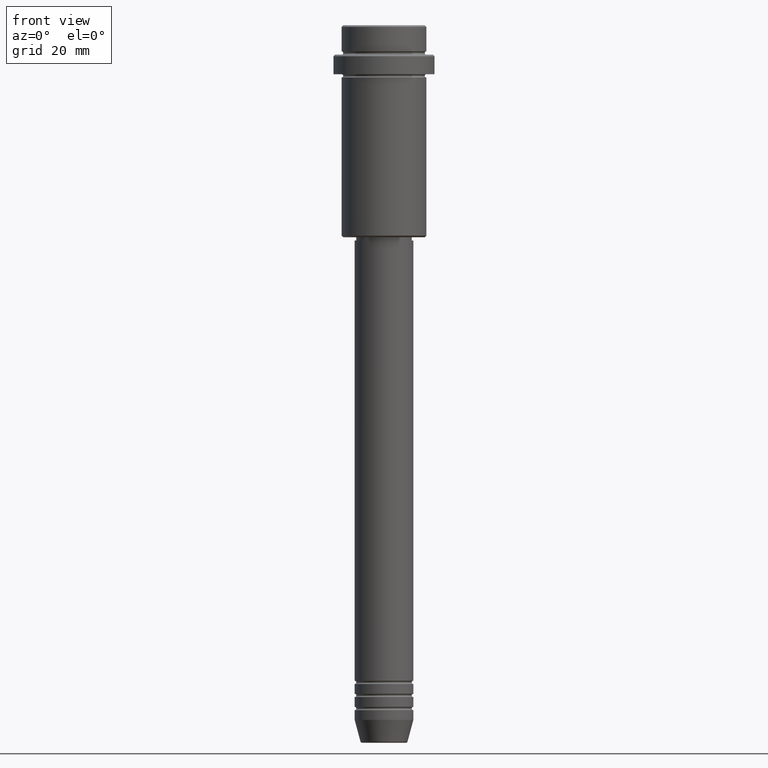
[diagram: clean part render]
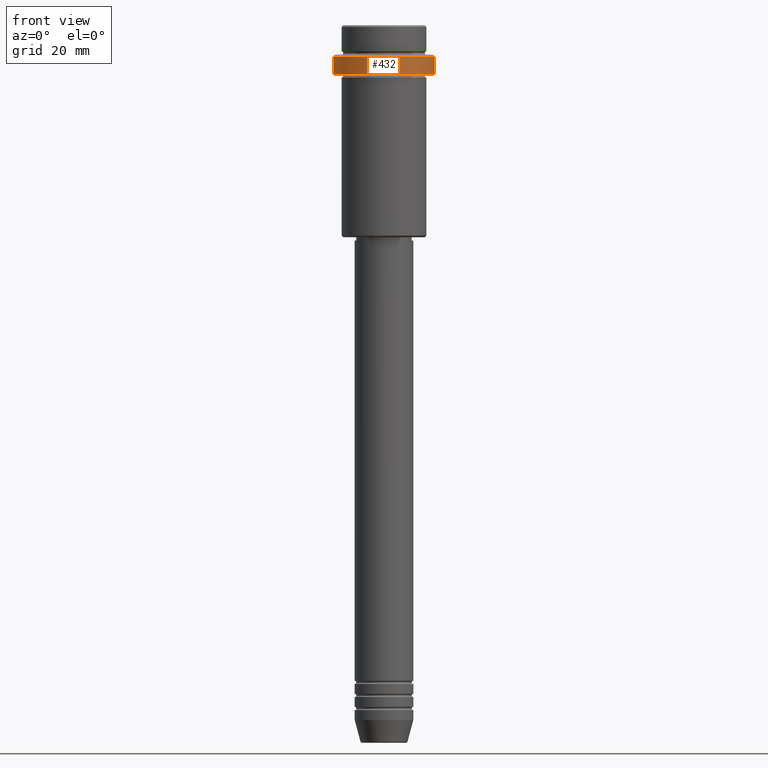
[diagram: same view with one face highlighted and labeled with its STEP entity id]
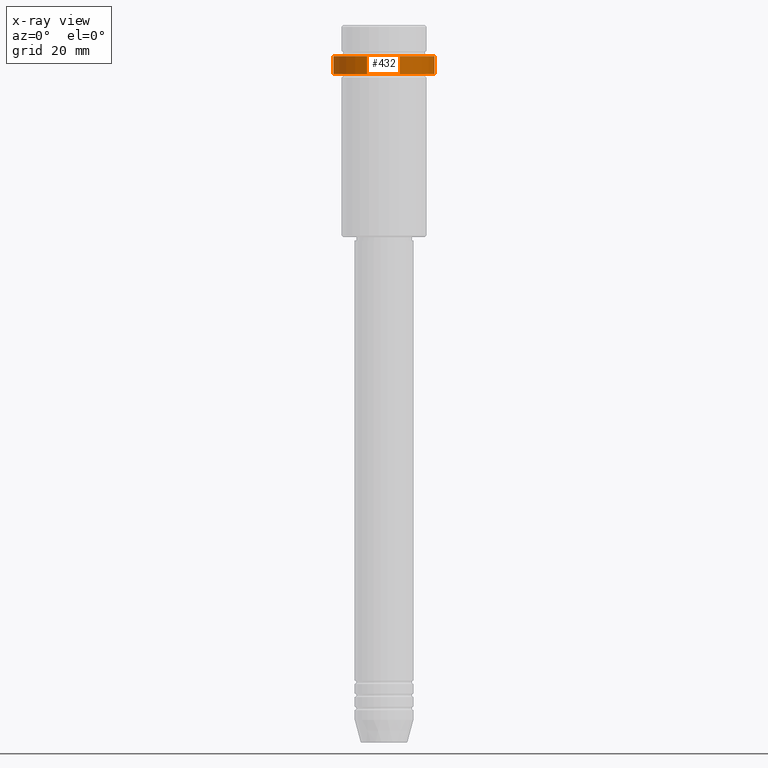
[diagram: x-ray of the same camera — body ghosted, the highlighted face saturated]
A machine part, front view. The second image highlights one B-rep face of the part: STEP entity #432.
The next image is the same camera in x-ray: the body ghosted, the highlighted face saturated — about 0% of this face is hidden behind the body in this view.
In plain terms, the highlighted cylindrical surface (partial cylindrical patch) has radius 15.5 mm, axis along (-0, -0, 1).
Its self-contained STEP definition (entity closure, byte-faithful):
#34 = LINE ( 'NONE', #462, #1074 ) ;
#45 = FACE_OUTER_BOUND ( 'NONE', #1151, .T. ) ;
#60 = VERTEX_POINT ( 'NONE', #1303 ) ;
#163 = AXIS2_PLACEMENT_3D ( 'NONE', #1166, #1373, #933 ) ;
#196 = EDGE_CURVE ( 'NONE', #60, #585, #318, .T. ) ;
#262 = ORIENTED_EDGE ( 'NONE', *, *, #812, .T. ) ;
#297 = ORIENTED_EDGE ( 'NONE', *, *, #196, .F. ) ;
#312 = VERTEX_POINT ( 'NONE', #344 ) ;
#315 = CARTESIAN_POINT ( 'NONE',  ( 0.000000000000000000, 0.000000000000000000, -9.500000000000039080 ) ) ;
#318 = LINE ( 'NONE', #437, #895 ) ;
#330 = CARTESIAN_POINT ( 'NONE',  ( 15.50000000000000000, 0.000000000000000000, -15.00000000000000000 ) ) ;
#335 = CARTESIAN_POINT ( 'NONE',  ( -15.50000000000000000, 1.898202538678397557E-15, -9.500000000000039080 ) ) ;
#344 = CARTESIAN_POINT ( 'NONE',  ( 15.50000000000000000, 0.000000000000000000, -9.500000000000039080 ) ) ;
#378 = EDGE_CURVE ( 'NONE', #312, #585, #1290, .T. ) ;
#386 = AXIS2_PLACEMENT_3D ( 'NONE', #315, #650, #1083 ) ;
#421 = DIRECTION ( 'NONE',  ( -0.000000000000000000, -0.000000000000000000, 1.000000000000000000 ) ) ;
#432 = ADVANCED_FACE ( 'NONE', ( #45 ), #942, .T. ) ;
#437 = CARTESIAN_POINT ( 'NONE',  ( -15.50000000000000000, 1.898202538678397557E-15, 0.000000000000000000 ) ) ;
#462 = CARTESIAN_POINT ( 'NONE',  ( 15.50000000000000000, 0.000000000000000000, 0.000000000000000000 ) ) ;
#585 = VERTEX_POINT ( 'NONE', #335 ) ;
#602 = CARTESIAN_POINT ( 'NONE',  ( 0.000000000000000000, 0.000000000000000000, -15.00000000000000000 ) ) ;
#650 = DIRECTION ( 'NONE',  ( 0.000000000000000000, 0.000000000000000000, -1.000000000000000000 ) ) ;
#669 = CIRCLE ( 'NONE', #1125, 15.50000000000000000 ) ;
#693 = VERTEX_POINT ( 'NONE', #330 ) ;
#812 = EDGE_CURVE ( 'NONE', #693, #312, #34, .T. ) ;
#895 = VECTOR ( 'NONE', #421, 1000.000000000000000 ) ;
#904 = EDGE_CURVE ( 'NONE', #60, #693, #669, .T. ) ;
#905 = DIRECTION ( 'NONE',  ( -0.000000000000000000, -0.000000000000000000, 1.000000000000000000 ) ) ;
#931 = DIRECTION ( 'NONE',  ( 1.000000000000000000, 0.000000000000000000, 0.000000000000000000 ) ) ;
#933 = DIRECTION ( 'NONE',  ( 1.000000000000000000, 0.000000000000000000, 0.000000000000000000 ) ) ;
#942 = CYLINDRICAL_SURFACE ( 'NONE', #163, 15.50000000000000000 ) ;
#1074 = VECTOR ( 'NONE', #905, 1000.000000000000000 ) ;
#1083 = DIRECTION ( 'NONE',  ( 1.000000000000000000, 0.000000000000000000, 0.000000000000000000 ) ) ;
#1125 = AXIS2_PLACEMENT_3D ( 'NONE', #602, #1285, #931 ) ;
#1138 = ORIENTED_EDGE ( 'NONE', *, *, #904, .T. ) ;
#1151 = EDGE_LOOP ( 'NONE', ( #297, #1138, #262, #1161 ) ) ;
#1161 = ORIENTED_EDGE ( 'NONE', *, *, #378, .T. ) ;
#1166 = CARTESIAN_POINT ( 'NONE',  ( 0.000000000000000000, 0.000000000000000000, 0.000000000000000000 ) ) ;
#1285 = DIRECTION ( 'NONE',  ( -0.000000000000000000, -0.000000000000000000, 1.000000000000000000 ) ) ;
#1290 = CIRCLE ( 'NONE', #386, 15.50000000000000000 ) ;
#1303 = CARTESIAN_POINT ( 'NONE',  ( -15.50000000000000000, 1.898202538678397557E-15, -15.00000000000000000 ) ) ;
#1373 = DIRECTION ( 'NONE',  ( -0.000000000000000000, -0.000000000000000000, 1.000000000000000000 ) ) ;